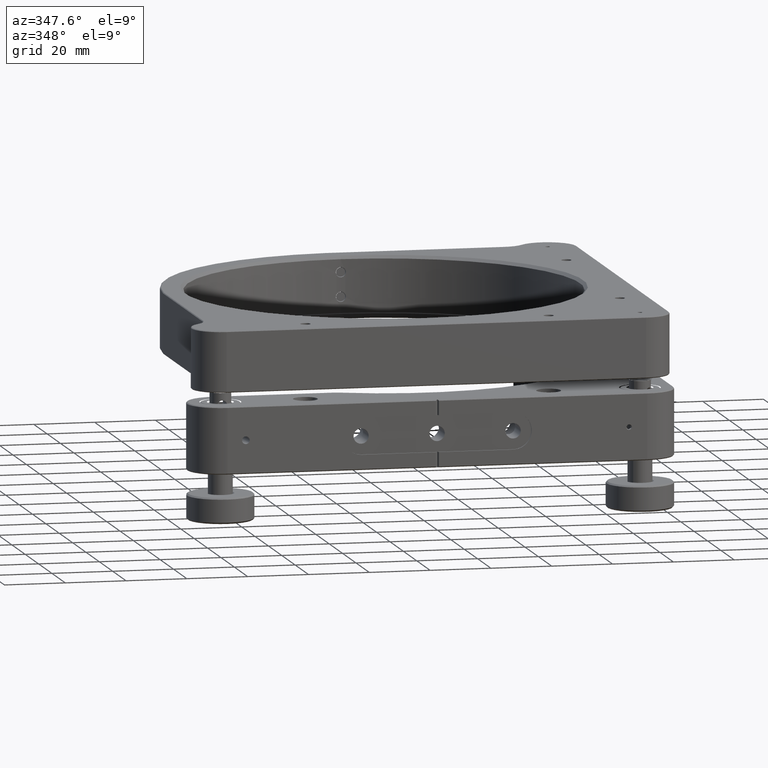
[diagram: clean part render]
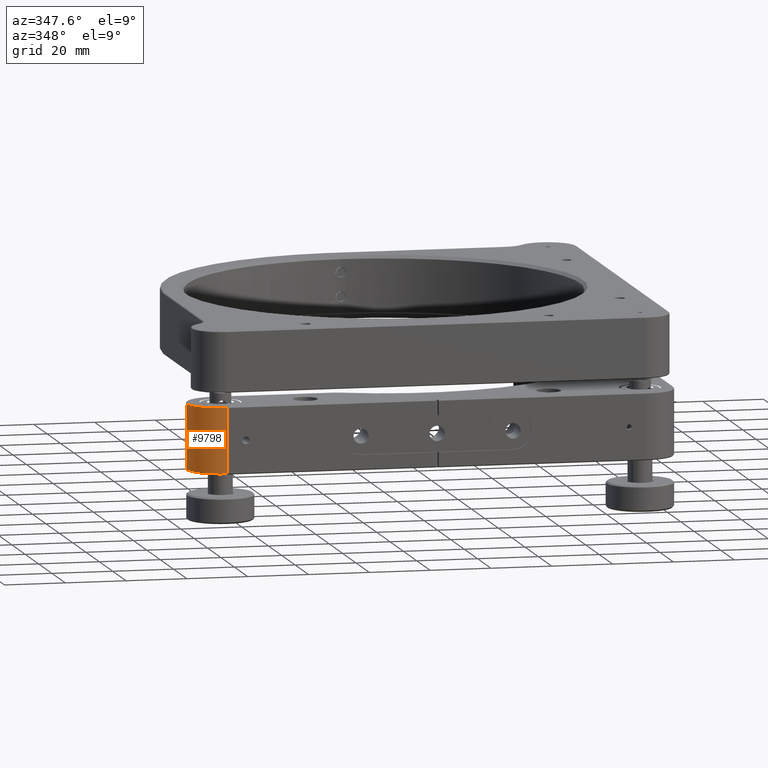
[diagram: same view with one face highlighted and labeled with its STEP entity id]
A machine part, auxiliary view. The second image highlights one B-rep face of the part: STEP entity #9798.
In plain terms, the highlighted cylindrical surface (edge-blend (fillet) strip) has radius 11 mm, axis along (-0, 0, -1).
Its self-contained STEP definition (entity closure, byte-faithful):
#823 = DIRECTION ( 'NONE',  ( -0.000000000000000000, 0.000000000000000000, -1.000000000000000000 ) ) ;
#915 = CARTESIAN_POINT ( 'NONE',  ( -68.99999999999998579, -69.00000000000001421, 11.00000000000000000 ) ) ;
#991 = ORIENTED_EDGE ( 'NONE', *, *, #10443, .F. ) ;
#1639 = AXIS2_PLACEMENT_3D ( 'NONE', #915, #823, #6574 ) ;
#2079 = ORIENTED_EDGE ( 'NONE', *, *, #3855, .F. ) ;
#2551 = DIRECTION ( 'NONE',  ( 1.000000000000000000, 0.000000000000000000, 0.000000000000000000 ) ) ;
#2658 = VERTEX_POINT ( 'NONE', #17407 ) ;
#3060 = VECTOR ( 'NONE', #12762, 1000.000000000000000 ) ;
#3855 = EDGE_CURVE ( 'NONE', #18648, #13559, #14345, .T. ) ;
#3945 = EDGE_LOOP ( 'NONE', ( #2079, #6771, #991, #9870 ) ) ;
#4305 = EDGE_CURVE ( 'NONE', #18648, #2658, #9501, .T. ) ;
#5369 = CARTESIAN_POINT ( 'NONE',  ( -68.99999999999998579, -69.00000000000001421, 10.70000000000003304 ) ) ;
#6574 = DIRECTION ( 'NONE',  ( -1.000000000000000000, 0.000000000000000000, 0.000000000000000000 ) ) ;
#6771 = ORIENTED_EDGE ( 'NONE', *, *, #4305, .T. ) ;
#7008 = EDGE_CURVE ( 'NONE', #17137, #13559, #9723, .T. ) ;
#8075 = VECTOR ( 'NONE', #11344, 1000.000000000000000 ) ;
#8705 = CARTESIAN_POINT ( 'NONE',  ( -68.99999999999998579, -80.00000000000001421, -10.69999999999997620 ) ) ;
#9383 = LINE ( 'NONE', #15130, #3060 ) ;
#9501 = CIRCLE ( 'NONE', #14925, 10.99999999999999645 ) ;
#9507 = CARTESIAN_POINT ( 'NONE',  ( -68.99999999999998579, -80.00000000000001421, 10.70000000000003304 ) ) ;
#9723 = CIRCLE ( 'NONE', #17878, 10.99999999999999645 ) ;
#9798 = ADVANCED_FACE ( 'NONE', ( #16850 ), #13834, .T. ) ;
#9870 = ORIENTED_EDGE ( 'NONE', *, *, #7008, .T. ) ;
#9918 = CARTESIAN_POINT ( 'NONE',  ( -68.99999999999998579, -80.00000000000001421, 11.00000000000000000 ) ) ;
#10443 = EDGE_CURVE ( 'NONE', #17137, #2658, #9383, .T. ) ;
#10842 = CARTESIAN_POINT ( 'NONE',  ( -79.99999999999998579, -69.00000000000002842, -10.69999999999997620 ) ) ;
#11234 = CARTESIAN_POINT ( 'NONE',  ( -68.99999999999998579, -69.00000000000001421, -10.69999999999997620 ) ) ;
#11344 = DIRECTION ( 'NONE',  ( -0.000000000000000000, 0.000000000000000000, -1.000000000000000000 ) ) ;
#11654 = DIRECTION ( 'NONE',  ( 1.000000000000000000, 0.000000000000000000, 0.000000000000000000 ) ) ;
#12762 = DIRECTION ( 'NONE',  ( 0.000000000000000000, -0.000000000000000000, 1.000000000000000000 ) ) ;
#13559 = VERTEX_POINT ( 'NONE', #8705 ) ;
#13834 = CYLINDRICAL_SURFACE ( 'NONE', #1639, 10.99999999999999645 ) ;
#14345 = LINE ( 'NONE', #9918, #8075 ) ;
#14925 = AXIS2_PLACEMENT_3D ( 'NONE', #5369, #15359, #11654 ) ;
#15130 = CARTESIAN_POINT ( 'NONE',  ( -79.99999999999998579, -69.00000000000002842, 11.00000000000000000 ) ) ;
#15359 = DIRECTION ( 'NONE',  ( 0.000000000000000000, 0.000000000000000000, -1.000000000000000000 ) ) ;
#16850 = FACE_OUTER_BOUND ( 'NONE', #3945, .T. ) ;
#17137 = VERTEX_POINT ( 'NONE', #10842 ) ;
#17407 = CARTESIAN_POINT ( 'NONE',  ( -79.99999999999998579, -69.00000000000002842, 10.70000000000003304 ) ) ;
#17878 = AXIS2_PLACEMENT_3D ( 'NONE', #11234, #18029, #2551 ) ;
#18029 = DIRECTION ( 'NONE',  ( 0.000000000000000000, 0.000000000000000000, 1.000000000000000000 ) ) ;
#18648 = VERTEX_POINT ( 'NONE', #9507 ) ;